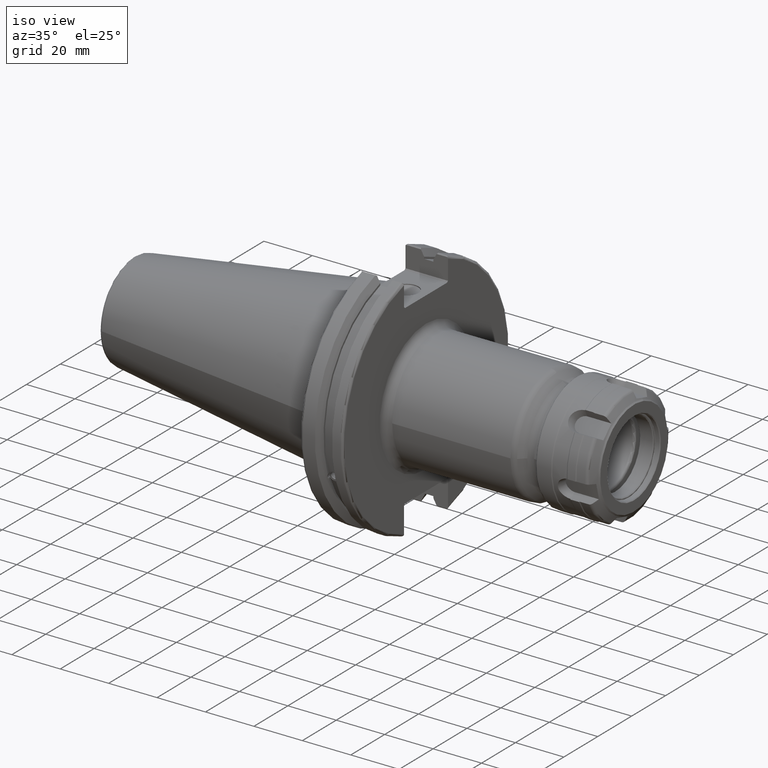
[diagram: clean part render]
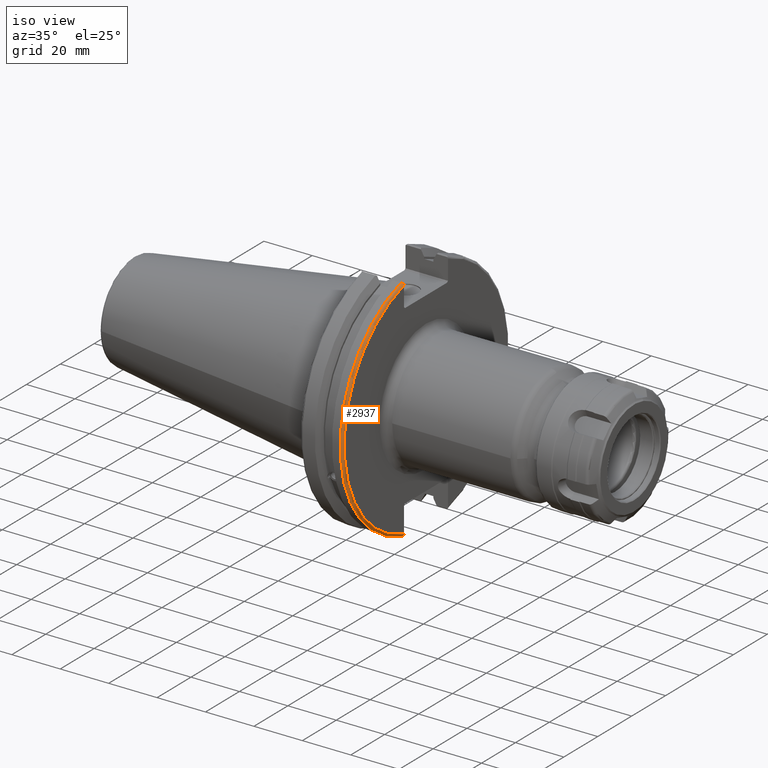
[diagram: same view with one face highlighted and labeled with its STEP entity id]
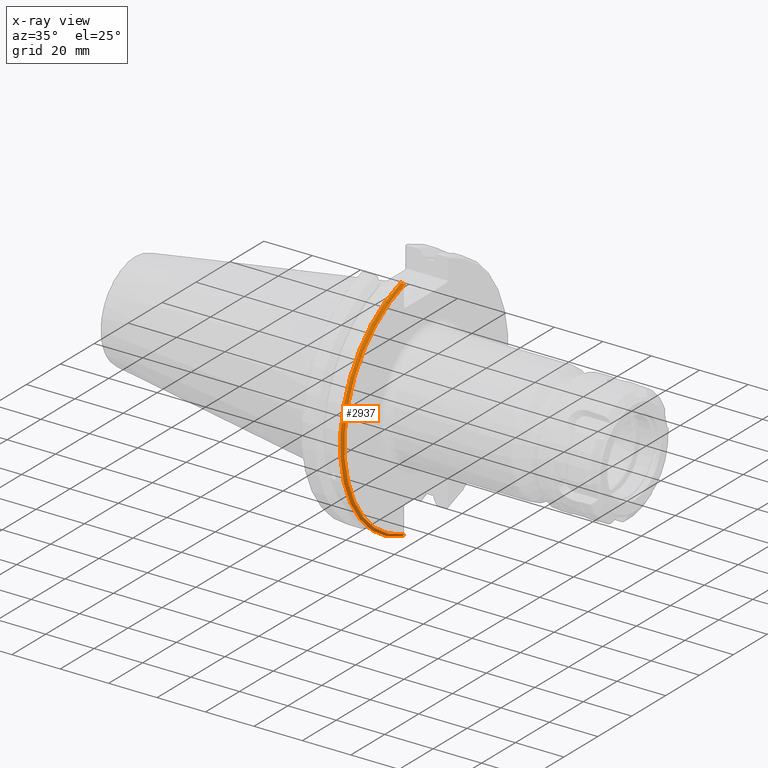
[diagram: x-ray of the same camera — body ghosted, the highlighted face saturated]
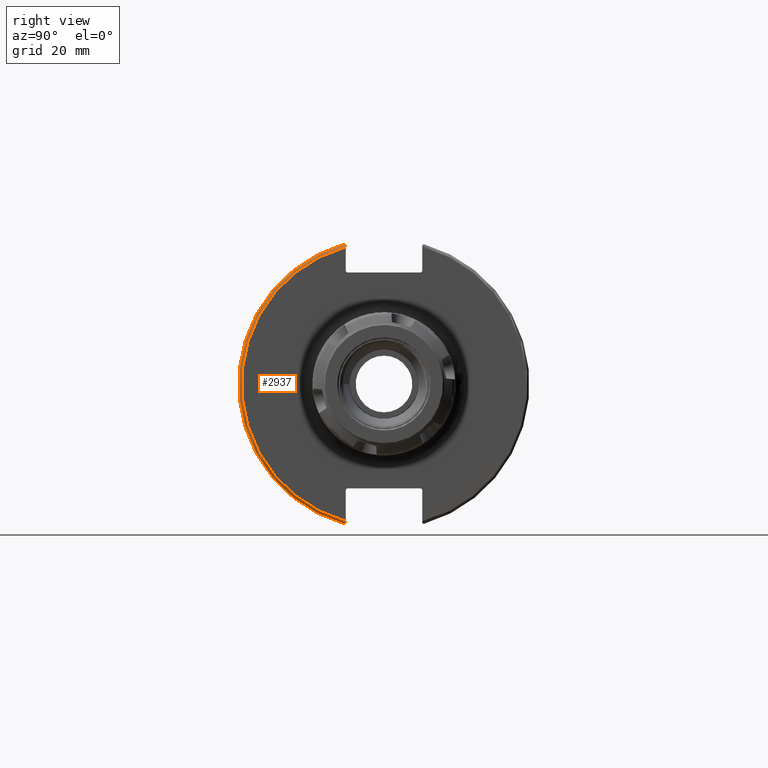
[diagram: same view with one face highlighted and labeled with its STEP entity id]
A machine part, iso view. The second image highlights one B-rep face of the part: STEP entity #2937.
The next image is the same camera in x-ray: the body ghosted, the highlighted face saturated — about 0% of this face is hidden behind the body in this view.
A second angle (right view) of the same face is appended — the face is thin or edge-on in the first view.
In plain terms, the highlighted toroidal blend (fillet) surface has major radius 48.2125 mm and minor (blend) radius 1 mm.
Its self-contained STEP definition (entity closure, byte-faithful):
#107=B_SPLINE_CURVE_WITH_KNOTS('',3,(#5035,#5036,#5037,#5038,#5039,#5040),
 .UNSPECIFIED.,.F.,.F.,(4,2,4),(0.097707143645253,0.112358403262293,0.150882178076498),
 .UNSPECIFIED.);
#108=B_SPLINE_CURVE_WITH_KNOTS('',3,(#5042,#5043,#5044,#5045,#5046,#5047),
 .UNSPECIFIED.,.F.,.F.,(4,2,4),(0.452859340315923,0.491741138916218,0.506051994111224),
 .UNSPECIFIED.);
#109=B_SPLINE_CURVE_WITH_KNOTS('',3,(#5049,#5050,#5051,#5052,#5053,#5054,
#5055,#5056),.UNSPECIFIED.,.F.,.F.,(4,2,2,4),(-0.104075769062722,-0.0730268503455477,
-0.0343639873656263,0.),.UNSPECIFIED.);
#110=B_SPLINE_CURVE_WITH_KNOTS('',3,(#5059,#5060,#5061,#5062,#5063,#5064,
#5065,#5066),.UNSPECIFIED.,.F.,.F.,(4,2,2,4),(0.,0.0364336453281818,0.0778720357014993,
0.104197480645881),.UNSPECIFIED.);
#708=FACE_OUTER_BOUND('',#889,.T.);
#889=EDGE_LOOP('',(#2210,#2211,#2212,#2213,#2214,#2215));
#1052=CIRCLE('',#3165,48.2125);
#1085=CIRCLE('',#3235,49.2125);
#1218=VERTEX_POINT('',#4399);
#1219=VERTEX_POINT('',#4401);
#1304=VERTEX_POINT('',#5034);
#1305=VERTEX_POINT('',#5041);
#1306=VERTEX_POINT('',#5048);
#1307=VERTEX_POINT('',#5057);
#1532=EDGE_CURVE('',#1219,#1218,#1052,.T.);
#1648=EDGE_CURVE('',#1304,#1219,#107,.T.);
#1649=EDGE_CURVE('',#1218,#1305,#108,.T.);
#1650=EDGE_CURVE('',#1305,#1306,#109,.T.);
#1651=EDGE_CURVE('',#1306,#1307,#1085,.T.);
#1652=EDGE_CURVE('',#1307,#1304,#110,.T.);
#2210=ORIENTED_EDGE('',*,*,#1648,.T.);
#2211=ORIENTED_EDGE('',*,*,#1532,.T.);
#2212=ORIENTED_EDGE('',*,*,#1649,.T.);
#2213=ORIENTED_EDGE('',*,*,#1650,.T.);
#2214=ORIENTED_EDGE('',*,*,#1651,.T.);
#2215=ORIENTED_EDGE('',*,*,#1652,.T.);
#2876=TOROIDAL_SURFACE('',#3234,48.2125,1.);
#2937=ADVANCED_FACE('',(#708),#2876,.T.);
#3165=AXIS2_PLACEMENT_3D('',#4402,#3558,#3559);
#3234=AXIS2_PLACEMENT_3D('',#5033,#3738,#3739);
#3235=AXIS2_PLACEMENT_3D('',#5058,#3740,#3741);
#3558=DIRECTION('center_axis',(-1.,0.,0.));
#3559=DIRECTION('ref_axis',(0.,-1.,1.60812264967664E-16));
#3738=DIRECTION('center_axis',(1.,0.,0.));
#3739=DIRECTION('ref_axis',(0.,0.,-1.));
#3740=DIRECTION('center_axis',(1.,0.,0.));
#3741=DIRECTION('ref_axis',(0.,-1.,1.60812264967664E-16));
#4399=CARTESIAN_POINT('',(19.05,-12.95,46.4407434937254));
#4401=CARTESIAN_POINT('',(19.05,-12.95,-46.4407434937254));
#4402=CARTESIAN_POINT('Origin',(19.05,0.,0.));
#5033=CARTESIAN_POINT('Origin',(18.05,0.,0.));
#5034=CARTESIAN_POINT('',(18.9055020570566,-12.95,-46.9780755322917));
#5035=CARTESIAN_POINT('Ctrl Pts',(18.9055020570566,-12.95,-46.9780755322917));
#5036=CARTESIAN_POINT('Ctrl Pts',(18.9322353702005,-12.95,-46.9322596399785));
#5037=CARTESIAN_POINT('Ctrl Pts',(18.9549831813775,-12.95,-46.8849952622217));
#5038=CARTESIAN_POINT('Ctrl Pts',(19.0209992543299,-12.95,-46.7204975987179));
#5039=CARTESIAN_POINT('Ctrl Pts',(19.05,-12.95,-46.5691560764394));
#5040=CARTESIAN_POINT('Ctrl Pts',(19.05,-12.95,-46.4407434937254));
#5041=CARTESIAN_POINT('',(18.9055020570566,-12.95,46.9780755322918));
#5042=CARTESIAN_POINT('Ctrl Pts',(19.05,-12.95,46.4407434937254));
#5043=CARTESIAN_POINT('Ctrl Pts',(19.05,-12.95,46.5703494890597));
#5044=CARTESIAN_POINT('Ctrl Pts',(19.0204646992875,-12.95,46.7230464903732));
#5045=CARTESIAN_POINT('Ctrl Pts',(18.9538432708766,-12.95,46.887363294568));
#5046=CARTESIAN_POINT('Ctrl Pts',(18.9315844351616,-12.95,46.9333752207329));
#5047=CARTESIAN_POINT('Ctrl Pts',(18.9055020570566,-12.95,46.9780755322918));
#5048=CARTESIAN_POINT('',(18.05,-13.4317035994433,47.3440544806494));
#5049=CARTESIAN_POINT('Ctrl Pts',(18.9055020570566,-12.95,46.9780755322918));
#5050=CARTESIAN_POINT('Ctrl Pts',(18.8571496772125,-13.0300321736484,47.0388807469102));
#5051=CARTESIAN_POINT('Ctrl Pts',(18.792640282015,-13.1083611826073,47.0983919657547));
#5052=CARTESIAN_POINT('Ctrl Pts',(18.6399248789208,-13.2478194810695,47.2043467509586));
#5053=CARTESIAN_POINT('Ctrl Pts',(18.5186188350904,-13.3242014686233,47.2623787015413));
#5054=CARTESIAN_POINT('Ctrl Pts',(18.2983889675417,-13.4067722493645,47.3251126473446));
#5055=CARTESIAN_POINT('Ctrl Pts',(18.1645466245521,-13.4317035994433,47.3440544806494));
#5056=CARTESIAN_POINT('Ctrl Pts',(18.05,-13.4317035994433,47.3440544806494));
#5057=CARTESIAN_POINT('',(18.05,-13.4317035994433,-47.3440544806494));
#5058=CARTESIAN_POINT('Origin',(18.05,0.,0.));
#5059=CARTESIAN_POINT('Ctrl Pts',(18.05,-13.4317035994433,-47.3440544806494));
#5060=CARTESIAN_POINT('Ctrl Pts',(18.1714454844273,-13.4317035994433,-47.3440544806494));
#5061=CARTESIAN_POINT('Ctrl Pts',(18.3128758164404,-13.4037095171132,-47.3227857070233));
#5062=CARTESIAN_POINT('Ctrl Pts',(18.54495745946,-13.3111366376071,-47.2524525703658));
#5063=CARTESIAN_POINT('Ctrl Pts',(18.6710431007969,-13.2254637570201,-47.1873617743322));
#5064=CARTESIAN_POINT('Ctrl Pts',(18.811782280389,-13.0847856162862,-47.0804802022157));
#5065=CARTESIAN_POINT('Ctrl Pts',(18.8641312352177,-13.0184763978125,-47.0301011349397));
#5066=CARTESIAN_POINT('Ctrl Pts',(18.9055020570566,-12.95,-46.9780755322917));